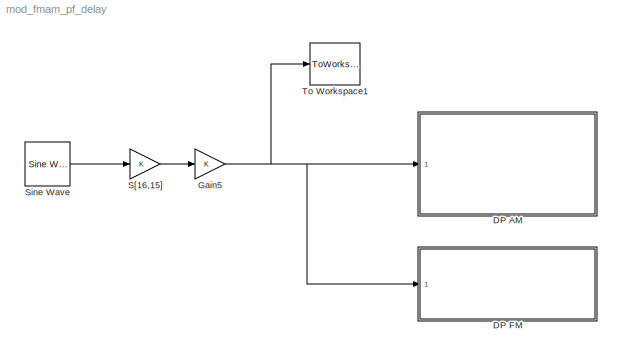
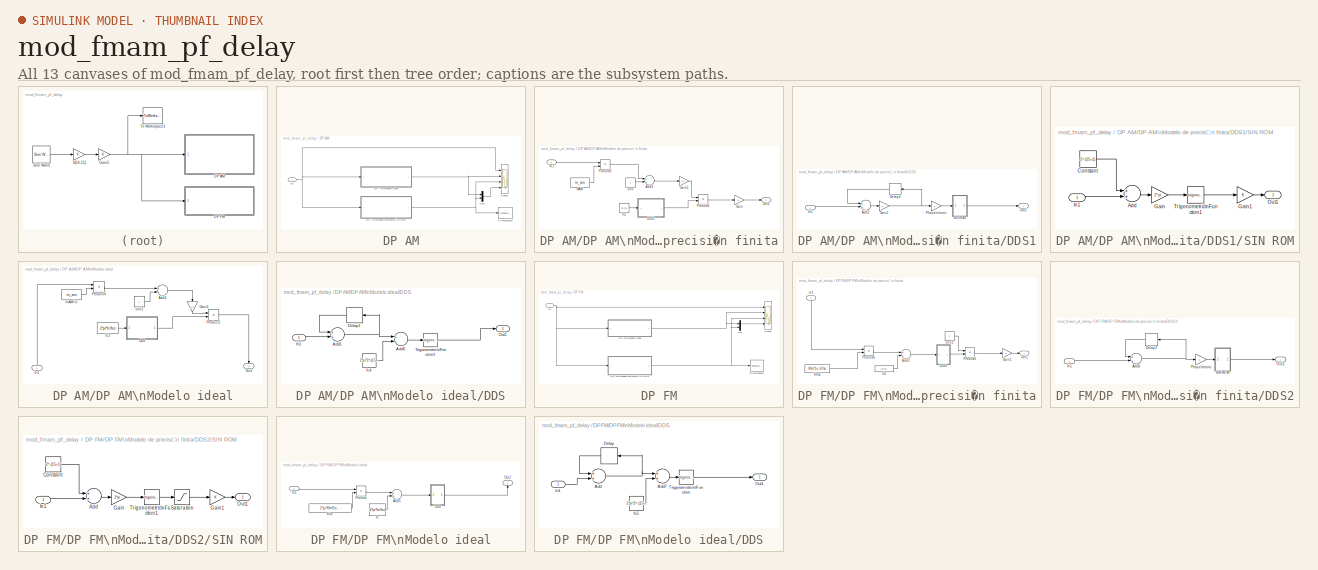
[diagram: thumbnail index - all 13 canvases of the model, root first then tree order]
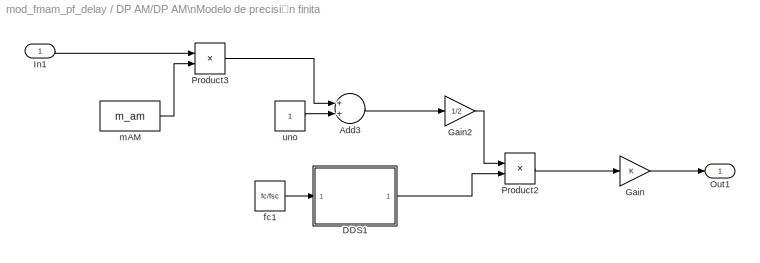
MODEL mod_fmam_pf_delay
KIND model
BLOCK [SubSystem] DP AM
  Ports = [1]
  RequestExecContextInheritance = off
  SID = 240
BLOCK [SubSystem] DP AM/DP AM\nModelo de precisión finita
  Ports = [1, 1]
  RequestExecContextInheritance = off
  SID = 255
BLOCK [Sum] DP AM/DP AM\nModelo de precisión finita/Add3
  AccumDataTypeStr = fixdt(1,17,15)
  InputSameDT = off
  OutDataTypeStr = Inherit: Inherit via internal rule
  Ports = [2, 1]
  SID = 26
  SaturateOnIntegerOverflow = off
BLOCK [SubSystem] DP AM/DP AM\nModelo de precisión finita/DDS1
  Ports = [1, 1]
  RequestExecContextInheritance = off
  SID = 135
BLOCK [Sum] DP AM/DP AM\nModelo de precisión finita/DDS1/Add2
  AccumDataTypeStr = fixdt(0,24,24)
  InputSameDT = off
  OutDataTypeStr = fixdt(0,24,24)
  Ports = [2, 1]
  RndMeth = Convergent
  SID = 25
  SaturateOnIntegerOverflow = off
BLOCK [Delay] DP AM/DP AM\nModelo de precisión finita/DDS1/Delay4
  DelayLength = 1
  InputPortMap = u0
  Ports = [1, 1]
  SID = 193
BLOCK [Gain] DP AM/DP AM\nModelo de precisión finita/DDS1/Gain1
  OutDataTypeStr = double
  ParamDataTypeStr = Inherit: Inherit via internal rule
  SID = 114
  SaturateOnIntegerOverflow = off
BLOCK [Inport] DP AM/DP AM\nModelo de precisión finita/DDS1/In1
  IconDisplay = Port number
  SID = 136
BLOCK [Outport] DP AM/DP AM\nModelo de precisión finita/DDS1/Out1
  IconDisplay = Port number
  SID = 137
BLOCK [Gain] DP AM/DP AM\nModelo de precisión finita/DDS1/Phase\ntrunc
  OutDataTypeStr = fixdt(0,15,15)
  ParamDataTypeStr = Inherit: Inherit via internal rule
  SID = 97
  SaturateOnIntegerOverflow = off
BLOCK [SubSystem] DP AM/DP AM\nModelo de precisión finita/DDS1/SIN ROM
  Ports = [1, 1]
  RequestExecContextInheritance = off
  SID = 98
BLOCK [Sum] DP AM/DP AM\nModelo de precisión finita/DDS1/SIN ROM/Add
  InputSameDT = off
  OutDataTypeStr = Inherit: Inherit via internal rule
  Ports = [2, 1]
  SID = 102
  SaturateOnIntegerOverflow = off
BLOCK [Constant] DP AM/DP AM\nModelo de precisión finita/DDS1/SIN ROM/Constant
  SID = 103
  Value = 2^-(15+1)
BLOCK [Gain] DP AM/DP AM\nModelo de precisión finita/DDS1/SIN ROM/Gain
  Gain = 2*pi
  OutDataTypeStr = Inherit: Inherit via internal rule
  ParamDataTypeStr = Inherit: Inherit via internal rule
  SID = 101
  SaturateOnIntegerOverflow = off
BLOCK [Gain] DP AM/DP AM\nModelo de precisión finita/DDS1/SIN ROM/Gain1
  OutDataTypeStr = fixdt(1,16,15)
  ParamDataTypeStr = Inherit: Inherit via internal rule
  RndMeth = Round
  SID = 104
BLOCK [Inport] DP AM/DP AM\nModelo de precisión finita/DDS1/SIN ROM/In1
  IconDisplay = Port number
  SID = 99
BLOCK [Outport] DP AM/DP AM\nModelo de precisión finita/DDS1/SIN ROM/Out1
  IconDisplay = Port number
  SID = 100
BLOCK [Trigonometry] DP AM/DP AM\nModelo de precisión finita/DDS1/SIN ROM/Trigonometric\nFunction1
  Ports = [1, 1]
  SID = 33
BLOCK [Gain] DP AM/DP AM\nModelo de precisión finita/Gain
  OutDataTypeStr = double
  ParamDataTypeStr = Inherit: Inherit via internal rule
  SID = 106
  SaturateOnIntegerOverflow = off
BLOCK [Gain] DP AM/DP AM\nModelo de precisión finita/Gain2
  Gain = 1/2
  OutDataTypeStr = fixdt(1,17,15)
  ParamDataTypeStr = Inherit: Inherit via internal rule
  SID = 117
  SaturateOnIntegerOverflow = off
BLOCK [Inport] DP AM/DP AM\nModelo de precisión finita/In1
  IconDisplay = Port number
  SID = 256
BLOCK [Outport] DP AM/DP AM\nModelo de precisión finita/Out1
  IconDisplay = Port number
  SID = 257
BLOCK [Product] DP AM/DP AM\nModelo de precisión finita/Product2
  InputSameDT = off
  OutDataTypeStr = fixdt(1,16,15)
  Ports = [2, 1]
  RndMeth = Floor
  SID = 35
  SaturateOnIntegerOverflow = off
BLOCK [Product] DP AM/DP AM\nModelo de precisión finita/Product3
  InputSameDT = off
  OutDataTypeStr = fixdt(1,16,15)
  Ports = [2, 1]
  RndMeth = Floor
  SID = 118
  SaturateOnIntegerOverflow = off
BLOCK [Constant] DP AM/DP AM\nModelo de precisión finita/fc1
  OutDataTypeStr = fixdt(0,24,24)
  SID = 34
  Value = fc/fsc
BLOCK [Constant] DP AM/DP AM\nModelo de precisión finita/mAM
  OutDataTypeStr = fixdt(0,16,15)
  SID = 119
  Value = m_am
BLOCK [Constant] DP AM/DP AM\nModelo de precisión finita/uno
  OutDataTypeStr = fixdt(0,16,15)
  SID = 29
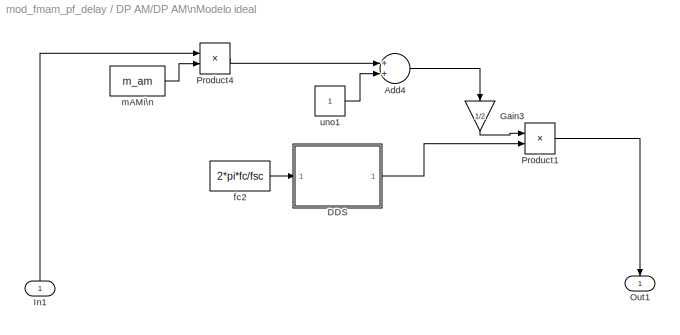
BLOCK [SubSystem] DP AM/DP AM\nModelo ideal
  Ports = [1, 1]
  RequestExecContextInheritance = off
  SID = 258
BLOCK [Sum] DP AM/DP AM\nModelo ideal/Add4
  InputSameDT = off
  OutDataTypeStr = Inherit: Inherit via internal rule
  Ports = [2, 1]
  SID = 108
  SaturateOnIntegerOverflow = off
BLOCK [SubSystem] DP AM/DP AM\nModelo ideal/DDS
  Ports = [1, 1]
  RequestExecContextInheritance = off
  SID = 252
BLOCK [Sum] DP AM/DP AM\nModelo ideal/DDS/Add1
  InputSameDT = off
  OutDataTypeStr = Inherit: Inherit via internal rule
  Ports = [2, 1]
  SID = 107
  SaturateOnIntegerOverflow = off
BLOCK [Sum] DP AM/DP AM\nModelo ideal/DDS/Add6
  InputSameDT = off
  OutDataTypeStr = Inherit: Inherit via internal rule
  Ports = [2, 1]
  SID = 164
  SaturateOnIntegerOverflow = off
BLOCK [Delay] DP AM/DP AM\nModelo ideal/DDS/Delay1
  DelayLength = 1
  InputPortMap = u0
  Ports = [1, 1]
  SID = 109
BLOCK [Inport] DP AM/DP AM\nModelo ideal/DDS/In1
  IconDisplay = Port number
  SID = 253
BLOCK [Outport] DP AM/DP AM\nModelo ideal/DDS/Out1
  IconDisplay = Port number
  SID = 254
BLOCK [Trigonometry] DP AM/DP AM\nModelo ideal/DDS/Trigonometric\nFunction1
  Ports = [1, 1]
  SID = 111
BLOCK [Constant] DP AM/DP AM\nModelo ideal/DDS/fc4
  SID = 165
  Value = 2*pi*2^-(15+1)
BLOCK [Gain] DP AM/DP AM\nModelo ideal/Gain3
  Gain = 1/2
  OutDataTypeStr = double
  ParamDataTypeStr = Inherit: Inherit via internal rule
  SID = 122
  SaturateOnIntegerOverflow = off
BLOCK [Inport] DP AM/DP AM\nModelo ideal/In1
  IconDisplay = Port number
  SID = 259
BLOCK [Outport] DP AM/DP AM\nModelo ideal/Out1
  IconDisplay = Port number
  SID = 260
BLOCK [Product] DP AM/DP AM\nModelo ideal/Product1
  InputSameDT = off
  OutDataTypeStr = Inherit: Inherit via internal rule
  Ports = [2, 1]
  RndMeth = Floor
  SID = 110
  SaturateOnIntegerOverflow = off
BLOCK [Product] DP AM/DP AM\nModelo ideal/Product4
  InputSameDT = off
  OutDataTypeStr = Inherit: Inherit via internal rule
  Ports = [2, 1]
  RndMeth = Floor
  SID = 120
  SaturateOnIntegerOverflow = off
BLOCK [Constant] DP AM/DP AM\nModelo ideal/fc2
  SID = 112
  Value = 2*pi*fc/fsc
BLOCK [Constant] DP AM/DP AM\nModelo ideal/mAMi\n
  SID = 121
  Value = m_am
BLOCK [Constant] DP AM/DP AM\nModelo ideal/uno1
  SID = 113
BLOCK [Inport] DP AM/In2
  IconDisplay = Port number
  SID = 242
BLOCK [Mux] DP AM/Mux1
  DisplayOption = bar
  Inputs = 2
  Ports = [2, 1]
  SID = 30
BLOCK [Scope] DP AM/Scope3
  Floating = off
  NumInputPorts = 4
  Ports = [4]
  SID = 32
  ScopeSpecificationString = Simulink.scopes.TimeScopeBlockCfg('CurrentConfiguration', extmgr.ConfigurationSet(extmgr.Configuration('Core','General UI',true),extmgr.Configuration('Core','Source UI',true),extmgr.Configuration('Sources','WiredSimulink',true,'DataLoggingVariableName','ScopeData3','DataLoggingSaveFormat','Array','DataLoggingDecimation','1','DataLoggingDecimateData',true),extmgr.Configuration('Visuals','Time Domai...<+3770ch>
BLOCK [ToWorkspace] DP AM/To Workspace2
  MaxDataPoints = inf
  Ports = [1]
  SID = 185
  SampleTime = -1
  Save2DSignal = 2-D array (concatenate along first dimension)
  VariableName = s_am
BLOCK [SubSystem] DP FM
  Ports = [1]
  RequestExecContextInheritance = off
  SID = 243
BLOCK [SubSystem] DP FM/DP FM\nModelo de precisión finita
  Ports = [1, 1]
  RequestExecContextInheritance = off
  SID = 269
BLOCK [Sum] DP FM/DP FM\nModelo de precisión finita/Add2
  AccumDataTypeStr = double
  InputSameDT = off
  OutDataTypeStr = fixdt(1,24,24)
  Ports = [2, 1]
  SID = 155
  SaturateOnIntegerOverflow = off
BLOCK [SubSystem] DP FM/DP FM\nModelo de precisión finita/DDS2
  Ports = [1, 1]
  RequestExecContextInheritance = off
  SID = 170
BLOCK [Sum] DP FM/DP FM\nModelo de precisión finita/DDS2/Add8
  AccumDataTypeStr = fixdt(0,24,24)
  InputSameDT = off
  OutDataTypeStr = fixdt(0,24,24)
  Ports = [2, 1]
  RndMeth = Convergent
  SID = 140
  SaturateOnIntegerOverflow = off
BLOCK [Delay] DP FM/DP FM\nModelo de precisión finita/DDS2/Delay2
  DelayLength = 1
  InputPortMap = u0
  Ports = [1, 1]
  SID = 141
BLOCK [Inport] DP FM/DP FM\nModelo de precisión finita/DDS2/In1
  IconDisplay = Port number
  SID = 171
BLOCK [Outport] DP FM/DP FM\nModelo de precisión finita/DDS2/Out1
  IconDisplay = Port number
  SID = 172
BLOCK [Gain] DP FM/DP FM\nModelo de precisión finita/DDS2/Phase\ntrunc
  OutDataTypeStr = fixdt(0,15,15)
  ParamDataTypeStr = Inherit: Inherit via internal rule
  SID = 143
  SaturateOnIntegerOverflow = off
BLOCK [SubSystem] DP FM/DP FM\nModelo de precisión finita/DDS2/SIN ROM
  Ports = [1, 1]
  RequestExecContextInheritance = off
  SID = 208
BLOCK [Sum] DP FM/DP FM\nModelo de precisión finita/DDS2/SIN ROM/Add
  InputSameDT = off
  OutDataTypeStr = Inherit: Inherit via internal rule
  Ports = [2, 1]
  SID = 210
  SaturateOnIntegerOverflow = off
BLOCK [Constant] DP FM/DP FM\nModelo de precisión finita/DDS2/SIN ROM/Constant
  SID = 211
  Value = 2^-(15+1)
BLOCK [Gain] DP FM/DP FM\nModelo de precisión finita/DDS2/SIN ROM/Gain
  Gain = 2*pi
  OutDataTypeStr = Inherit: Inherit via internal rule
  ParamDataTypeStr = Inherit: Inherit via internal rule
  SID = 212
  SaturateOnIntegerOverflow = off
BLOCK [Gain] DP FM/DP FM\nModelo de precisión finita/DDS2/SIN ROM/Gain1
  OutDataTypeStr = fixdt(1,16,15)
  ParamDataTypeStr = Inherit: Inherit via internal rule
  RndMeth = Round
  SID = 213
BLOCK [Inport] DP FM/DP FM\nModelo de precisión finita/DDS2/SIN ROM/In1
  IconDisplay = Port number
  SID = 209
BLOCK [Outport] DP FM/DP FM\nModelo de precisión finita/DDS2/SIN ROM/Out1
  IconDisplay = Port number
  SID = 215
BLOCK [Saturate] DP FM/DP FM\nModelo de precisión finita/DDS2/SIN ROM/Saturation
  InputPortMap = u0
  LowerLimit = -(1-2^-15)
  Ports = [1, 1]
  SID = 247
  UpperLimit = 1-2^-15
BLOCK [Trigonometry] DP FM/DP FM\nModelo de precisión finita/DDS2/SIN ROM/Trigonometric\nFunction1
  Ports = [1, 1]
  SID = 214
BLOCK [Gain] DP FM/DP FM\nModelo de precisión finita/Gain1
  OutDataTypeStr = double
  ParamDataTypeStr = Inherit: Inherit via internal rule
  SID = 166
  SaturateOnIntegerOverflow = off
BLOCK [Inport] DP FM/DP FM\nModelo de precisión finita/In1
  IconDisplay = Port number
  SID = 270
BLOCK [Constant] DP FM/DP FM\nModelo de precisión finita/Kfm1
  OutDataTypeStr = fixdt(0,16,16)
  SID = 156
  Value = Kfm*1e-3/fsc
BLOCK [Outport] DP FM/DP FM\nModelo de precisión finita/Out1
  IconDisplay = Port number
  SID = 271
BLOCK [Product] DP FM/DP FM\nModelo de precisión finita/Product5
  InputSameDT = off
  OutDataTypeStr = fixdt(1,16,15)
  Ports = [2, 1]
  RndMeth = Floor
  SID = 153
  SaturateOnIntegerOverflow = off
BLOCK [Product] DP FM/DP FM\nModelo de precisión finita/Product6
  InputSameDT = off
  OutDataTypeStr = fixdt(1,24,24)
  Ports = [2, 1]
  RndMeth = Floor
  SID = 157
  SaturateOnIntegerOverflow = off
BLOCK [Constant] DP FM/DP FM\nModelo de precisión finita/fc3
  OutDataTypeStr = fixdt(0,24,24)
  SID = 158
  Value = fc/fsc
BLOCK [Constant] DP FM/DP FM\nModelo de precisión finita/uno2
  OutDataTypeStr = fixdt(0,17,15)
  SID = 154
BLOCK [SubSystem] DP FM/DP FM\nModelo ideal
  Ports = [1, 1]
  RequestExecContextInheritance = off
  SID = 266
BLOCK [Sum] DP FM/DP FM\nModelo ideal/Add5
  InputSameDT = off
  OutDataTypeStr = Inherit: Inherit via internal rule
  Ports = [2, 1]
  SID = 126
  SaturateOnIntegerOverflow = off
BLOCK [SubSystem] DP FM/DP FM\nModelo ideal/DDS
  Ports = [1, 1]
  RequestExecContextInheritance = off
  SID = 262
BLOCK [Sum] DP FM/DP FM\nModelo ideal/DDS/Add
  InputSameDT = off
  OutDataTypeStr = Inherit: Inherit via internal rule
  Ports = [2, 1]
  SID = 125
  SaturateOnIntegerOverflow = off
BLOCK [Sum] DP FM/DP FM\nModelo ideal/DDS/Add7
  InputSameDT = off
  OutDataTypeStr = Inherit: Inherit via internal rule
  Ports = [2, 1]
  SID = 168
  SaturateOnIntegerOverflow = off
BLOCK [Delay] DP FM/DP FM\nModelo ideal/DDS/Delay
  DelayLength = 1
  InputPortMap = u0
  Ports = [1, 1]
  SID = 127
BLOCK [Inport] DP FM/DP FM\nModelo ideal/DDS/In1
  IconDisplay = Port number
  SID = 263
BLOCK [Outport] DP FM/DP FM\nModelo ideal/DDS/Out1
  IconDisplay = Port number
  SID = 264
BLOCK [Trigonometry] DP FM/DP FM\nModelo ideal/DDS/Trigonometric\nFunction
  Ports = [1, 1]
  SID = 133
BLOCK [Constant] DP FM/DP FM\nModelo ideal/DDS/fc5
  SID = 167
  Value = 2*pi*2^-(15+1)
BLOCK [Inport] DP FM/DP FM\nModelo ideal/In1
  IconDisplay = Port number
  SID = 267
BLOCK [Constant] DP FM/DP FM\nModelo ideal/Kfm
  SID = 129
  Value = 2*pi*Kfm*1e-3/fsc
BLOCK [Outport] DP FM/DP FM\nModelo ideal/Out1
  IconDisplay = Port number
  SID = 268
BLOCK [Product] DP FM/DP FM\nModelo ideal/Product
  InputSameDT = off
  OutDataTypeStr = Inherit: Inherit via internal rule
  Ports = [2, 1]
  RndMeth = Floor
  SID = 131
  SaturateOnIntegerOverflow = off
BLOCK [Constant] DP FM/DP FM\nModelo ideal/fc
  SID = 134
  Value = 2*pi*fc/fsc
BLOCK [Inport] DP FM/In1
  IconDisplay = Port number
  SID = 244
BLOCK [Mux] DP FM/Mux
  DisplayOption = bar
  Inputs = 2
  Ports = [2, 1]
  SID = 130
BLOCK [Scope] DP FM/Scope1
  Floating = off
  NumInputPorts = 4
  Ports = [4]
  SID = 230
  ScopeSpecificationString = Simulink.scopes.TimeScopeBlockCfg('CurrentConfiguration', extmgr.ConfigurationSet(extmgr.Configuration('Core','General UI',true),extmgr.Configuration('Core','Source UI',true),extmgr.Configuration('Sources','WiredSimulink',true,'DataLoggingSaveFormat','Array','DataLoggingDecimation','1','DataLoggingDecimateData',true),extmgr.Configuration('Visuals','Time Domain',true,'SerializedDisplays',{struct('M...<+3768ch>
BLOCK [ToWorkspace] DP FM/To Workspace3
  MaxDataPoints = inf
  Ports = [1]
  SID = 186
  SampleTime = -1
  Save2DSignal = 2-D array (concatenate along first dimension)
  VariableName = s_fm
BLOCK [Gain] Gain5
  OutDataTypeStr = double
  ParamDataTypeStr = Inherit: Inherit via internal rule
  SID = 189
  SaturateOnIntegerOverflow = off
BLOCK [Gain] S[16,15]
  OutDataTypeStr = fixdt(1,16,15)
  ParamDataTypeStr = Inherit: Inherit via internal rule
  RndMeth = Nearest
  SID = 105
  SaturateOnIntegerOverflow = off
BLOCK [Reference] Sine Wave  REF=dspsrcs4/Sine Wave
  Amplitude = 1-2^-15
  CompMethod = Trigonometric fcn
  Frequency = fmod/1000
  LastOutDataTypeStr = double
  MultiThreadCoSim = auto
  OutComplex = Real
  OutDataTypeStr = double
  OutputFrames = on
  Phase = -pi/40
  Ports = [0, 1]
  ResetState = Restart at time zero
  SID = 9
  SampleMode = Discrete
  SampleTime = 1/fsc
  SamplesPerFrame = 1
  SourceBlock = dspsrcs4/Sine Wave
  SourceProductBaseCode = DS
  SourceProductName = DSP System Toolbox
  SourceType = Sine Wave
  TableSize = Speed
  additionalParams = off
  allowOverrides = on
  dataType = double
  fracBitsMode = Best precision
  numFracBits = 15
  udDataType = sfix(16)
  wordLen = 16
BLOCK [ToWorkspace] To Workspace1
  MaxDataPoints = inf
  Ports = [1]
  SID = 68
  SampleTime = -1
  Save2DSignal = 2-D array (concatenate along first dimension)
  VariableName = s_in
LINE DP AM/DP AM\nModelo de precisión finita/Add3:1 -> DP AM/DP AM\nModelo de precisión finita/Gain2:1
LINE DP AM/DP AM\nModelo de precisión finita/DDS1/Add2:1 -> DP AM/DP AM\nModelo de precisión finita/DDS1/Gain1:1
LINE DP AM/DP AM\nModelo de precisión finita/DDS1/Delay4:1 -> DP AM/DP AM\nModelo de precisión finita/DDS1/Add2:1
NET DP AM/DP AM\nModelo de precisión finita/DDS1/Gain1:1 -> DP AM/DP AM\nModelo de precisión finita/DDS1/Delay4:1, DP AM/DP AM\nModelo de precisión finita/DDS1/Phase\ntrunc:1
LINE DP AM/DP AM\nModelo de precisión finita/DDS1/In1:1 -> DP AM/DP AM\nModelo de precisión finita/DDS1/Add2:2
LINE DP AM/DP AM\nModelo de precisión finita/DDS1/Phase\ntrunc:1 -> DP AM/DP AM\nModelo de precisión finita/DDS1/SIN ROM:1
LINE DP AM/DP AM\nModelo de precisión finita/DDS1/SIN ROM/Add:1 -> DP AM/DP AM\nModelo de precisión finita/DDS1/SIN ROM/Gain:1
LINE DP AM/DP AM\nModelo de precisión finita/DDS1/SIN ROM/Constant:1 -> DP AM/DP AM\nModelo de precisión finita/DDS1/SIN ROM/Add:1
LINE DP AM/DP AM\nModelo de precisión finita/DDS1/SIN ROM/Gain1:1 -> DP AM/DP AM\nModelo de precisión finita/DDS1/SIN ROM/Out1:1
LINE DP AM/DP AM\nModelo de precisión finita/DDS1/SIN ROM/Gain:1 -> DP AM/DP AM\nModelo de precisión finita/DDS1/SIN ROM/Trigonometric\nFunction1:1
LINE DP AM/DP AM\nModelo de precisión finita/DDS1/SIN ROM/In1:1 -> DP AM/DP AM\nModelo de precisión finita/DDS1/SIN ROM/Add:2
LINE DP AM/DP AM\nModelo de precisión finita/DDS1/SIN ROM/Trigonometric\nFunction1:1 -> DP AM/DP AM\nModelo de precisión finita/DDS1/SIN ROM/Gain1:1
LINE DP AM/DP AM\nModelo de precisión finita/DDS1/SIN ROM:1 -> DP AM/DP AM\nModelo de precisión finita/DDS1/Out1:1
LINE DP AM/DP AM\nModelo de precisión finita/DDS1:1 -> DP AM/DP AM\nModelo de precisión finita/Product2:2
LINE DP AM/DP AM\nModelo de precisión finita/Gain2:1 -> DP AM/DP AM\nModelo de precisión finita/Product2:1
LINE DP AM/DP AM\nModelo de precisión finita/Gain:1 -> DP AM/DP AM\nModelo de precisión finita/Out1:1
LINE DP AM/DP AM\nModelo de precisión finita/In1:1 -> DP AM/DP AM\nModelo de precisión finita/Product3:1
LINE DP AM/DP AM\nModelo de precisión finita/Product2:1 -> DP AM/DP AM\nModelo de precisión finita/Gain:1
LINE DP AM/DP AM\nModelo de precisión finita/Product3:1 -> DP AM/DP AM\nModelo de precisión finita/Add3:1
LINE DP AM/DP AM\nModelo de precisión finita/fc1:1 -> DP AM/DP AM\nModelo de precisión finita/DDS1:1
LINE DP AM/DP AM\nModelo de precisión finita/mAM:1 -> DP AM/DP AM\nModelo de precisión finita/Product3:2
LINE DP AM/DP AM\nModelo de precisión finita/uno:1 -> DP AM/DP AM\nModelo de precisión finita/Add3:2
NET DP AM/DP AM\nModelo de precisión finita:1 -> DP AM/Mux1:2, DP AM/Scope3:3, DP AM/To Workspace2:1
LINE DP AM/DP AM\nModelo ideal/Add4:1 -> DP AM/DP AM\nModelo ideal/Gain3:1
NET DP AM/DP AM\nModelo ideal/DDS/Add1:1 -> DP AM/DP AM\nModelo ideal/DDS/Add6:1, DP AM/DP AM\nModelo ideal/DDS/Delay1:1
LINE DP AM/DP AM\nModelo ideal/DDS/Add6:1 -> DP AM/DP AM\nModelo ideal/DDS/Trigonometric\nFunction1:1
LINE DP AM/DP AM\nModelo ideal/DDS/Delay1:1 -> DP AM/DP AM\nModelo ideal/DDS/Add1:1
LINE DP AM/DP AM\nModelo ideal/DDS/In1:1 -> DP AM/DP AM\nModelo ideal/DDS/Add1:2
LINE DP AM/DP AM\nModelo ideal/DDS/Trigonometric\nFunction1:1 -> DP AM/DP AM\nModelo ideal/DDS/Out1:1
LINE DP AM/DP AM\nModelo ideal/DDS/fc4:1 -> DP AM/DP AM\nModelo ideal/DDS/Add6:2
LINE DP AM/DP AM\nModelo ideal/DDS:1 -> DP AM/DP AM\nModelo ideal/Product1:2
LINE DP AM/DP AM\nModelo ideal/Gain3:1 -> DP AM/DP AM\nModelo ideal/Product1:1
LINE DP AM/DP AM\nModelo ideal/In1:1 -> DP AM/DP AM\nModelo ideal/Product4:1
LINE DP AM/DP AM\nModelo ideal/Product1:1 -> DP AM/DP AM\nModelo ideal/Out1:1
LINE DP AM/DP AM\nModelo ideal/Product4:1 -> DP AM/DP AM\nModelo ideal/Add4:1
LINE DP AM/DP AM\nModelo ideal/fc2:1 -> DP AM/DP AM\nModelo ideal/DDS:1
LINE DP AM/DP AM\nModelo ideal/mAMi\n:1 -> DP AM/DP AM\nModelo ideal/Product4:2
LINE DP AM/DP AM\nModelo ideal/uno1:1 -> DP AM/DP AM\nModelo ideal/Add4:2
NET DP AM/DP AM\nModelo ideal:1 -> DP AM/Mux1:1, DP AM/Scope3:2
NET DP AM/In2:1 -> DP AM/DP AM\nModelo de precisión finita:1, DP AM/DP AM\nModelo ideal:1, DP AM/Scope3:1
LINE DP AM/Mux1:1 -> DP AM/Scope3:4
LINE DP FM/DP FM\nModelo de precisión finita/Add2:1 -> DP FM/DP FM\nModelo de precisión finita/DDS2:1
NET DP FM/DP FM\nModelo de precisión finita/DDS2/Add8:1 -> DP FM/DP FM\nModelo de precisión finita/DDS2/Delay2:1, DP FM/DP FM\nModelo de precisión finita/DDS2/Phase\ntrunc:1
LINE DP FM/DP FM\nModelo de precisión finita/DDS2/Delay2:1 -> DP FM/DP FM\nModelo de precisión finita/DDS2/Add8:1
LINE DP FM/DP FM\nModelo de precisión finita/DDS2/In1:1 -> DP FM/DP FM\nModelo de precisión finita/DDS2/Add8:2
LINE DP FM/DP FM\nModelo de precisión finita/DDS2/Phase\ntrunc:1 -> DP FM/DP FM\nModelo de precisión finita/DDS2/SIN ROM:1
LINE DP FM/DP FM\nModelo de precisión finita/DDS2/SIN ROM/Add:1 -> DP FM/DP FM\nModelo de precisión finita/DDS2/SIN ROM/Gain:1
LINE DP FM/DP FM\nModelo de precisión finita/DDS2/SIN ROM/Constant:1 -> DP FM/DP FM\nModelo de precisión finita/DDS2/SIN ROM/Add:1
LINE DP FM/DP FM\nModelo de precisión finita/DDS2/SIN ROM/Gain1:1 -> DP FM/DP FM\nModelo de precisión finita/DDS2/SIN ROM/Out1:1
LINE DP FM/DP FM\nModelo de precisión finita/DDS2/SIN ROM/Gain:1 -> DP FM/DP FM\nModelo de precisión finita/DDS2/SIN ROM/Trigonometric\nFunction1:1
LINE DP FM/DP FM\nModelo de precisión finita/DDS2/SIN ROM/In1:1 -> DP FM/DP FM\nModelo de precisión finita/DDS2/SIN ROM/Add:2
LINE DP FM/DP FM\nModelo de precisión finita/DDS2/SIN ROM/Saturation:1 -> DP FM/DP FM\nModelo de precisión finita/DDS2/SIN ROM/Gain1:1
LINE DP FM/DP FM\nModelo de precisión finita/DDS2/SIN ROM/Trigonometric\nFunction1:1 -> DP FM/DP FM\nModelo de precisión finita/DDS2/SIN ROM/Saturation:1
LINE DP FM/DP FM\nModelo de precisión finita/DDS2/SIN ROM:1 -> DP FM/DP FM\nModelo de precisión finita/DDS2/Out1:1
LINE DP FM/DP FM\nModelo de precisión finita/DDS2:1 -> DP FM/DP FM\nModelo de precisión finita/Product5:2
LINE DP FM/DP FM\nModelo de precisión finita/Gain1:1 -> DP FM/DP FM\nModelo de precisión finita/Out1:1
LINE DP FM/DP FM\nModelo de precisión finita/In1:1 -> DP FM/DP FM\nModelo de precisión finita/Product6:1
LINE DP FM/DP FM\nModelo de precisión finita/Kfm1:1 -> DP FM/DP FM\nModelo de precisión finita/Product6:2
LINE DP FM/DP FM\nModelo de precisión finita/Product5:1 -> DP FM/DP FM\nModelo de precisión finita/Gain1:1
LINE DP FM/DP FM\nModelo de precisión finita/Product6:1 -> DP FM/DP FM\nModelo de precisión finita/Add2:1
LINE DP FM/DP FM\nModelo de precisión finita/fc3:1 -> DP FM/DP FM\nModelo de precisión finita/Add2:2
LINE DP FM/DP FM\nModelo de precisión finita/uno2:1 -> DP FM/DP FM\nModelo de precisión finita/Product5:1
NET DP FM/DP FM\nModelo de precisión finita:1 -> DP FM/Mux:2, DP FM/Scope1:3, DP FM/To Workspace3:1
LINE DP FM/DP FM\nModelo ideal/Add5:1 -> DP FM/DP FM\nModelo ideal/DDS:1
LINE DP FM/DP FM\nModelo ideal/DDS/Add7:1 -> DP FM/DP FM\nModelo ideal/DDS/Trigonometric\nFunction:1
NET DP FM/DP FM\nModelo ideal/DDS/Add:1 -> DP FM/DP FM\nModelo ideal/DDS/Add7:1, DP FM/DP FM\nModelo ideal/DDS/Delay:1
LINE DP FM/DP FM\nModelo ideal/DDS/Delay:1 -> DP FM/DP FM\nModelo ideal/DDS/Add:1
LINE DP FM/DP FM\nModelo ideal/DDS/In1:1 -> DP FM/DP FM\nModelo ideal/DDS/Add:2
LINE DP FM/DP FM\nModelo ideal/DDS/Trigonometric\nFunction:1 -> DP FM/DP FM\nModelo ideal/DDS/Out1:1
LINE DP FM/DP FM\nModelo ideal/DDS/fc5:1 -> DP FM/DP FM\nModelo ideal/DDS/Add7:2
LINE DP FM/DP FM\nModelo ideal/DDS:1 -> DP FM/DP FM\nModelo ideal/Out1:1
LINE DP FM/DP FM\nModelo ideal/In1:1 -> DP FM/DP FM\nModelo ideal/Product:1
LINE DP FM/DP FM\nModelo ideal/Kfm:1 -> DP FM/DP FM\nModelo ideal/Product:2
LINE DP FM/DP FM\nModelo ideal/Product:1 -> DP FM/DP FM\nModelo ideal/Add5:1
LINE DP FM/DP FM\nModelo ideal/fc:1 -> DP FM/DP FM\nModelo ideal/Add5:2
NET DP FM/DP FM\nModelo ideal:1 -> DP FM/Mux:1, DP FM/Scope1:2
NET DP FM/In1:1 -> DP FM/DP FM\nModelo de precisión finita:1, DP FM/DP FM\nModelo ideal:1, DP FM/Scope1:1
LINE DP FM/Mux:1 -> DP FM/Scope1:4
NET Gain5:1 -> DP AM:1, DP FM:1, To Workspace1:1
LINE S[16,15]:1 -> Gain5:1
LINE Sine Wave:1 -> S[16,15]:1
note: NET lines group one-source signal fan-out (src -> all destinations, sorted); 1:1 wires keep LINE
